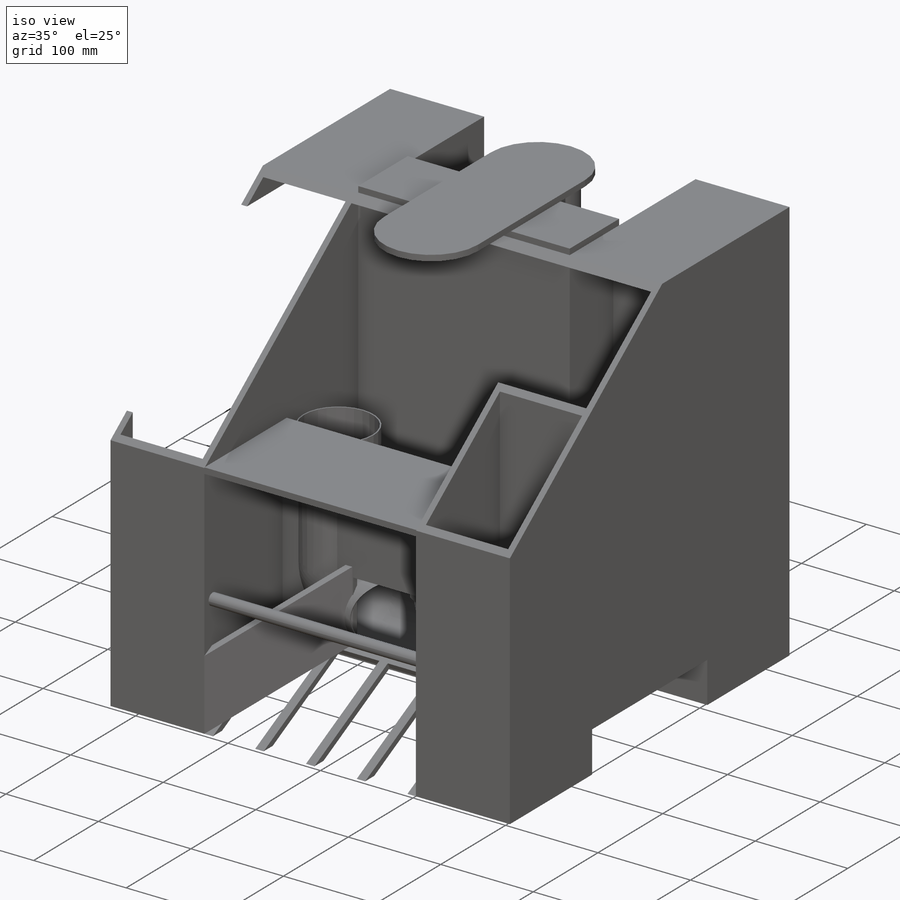
[diagram: iso view]
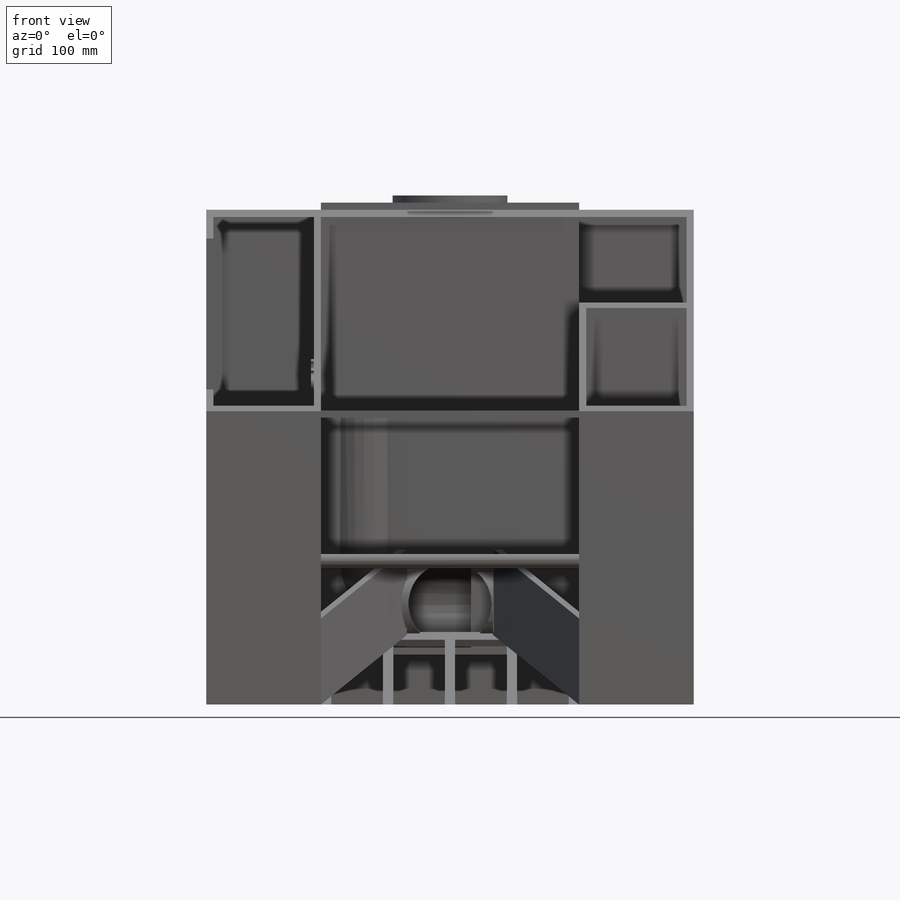
[diagram: front view]
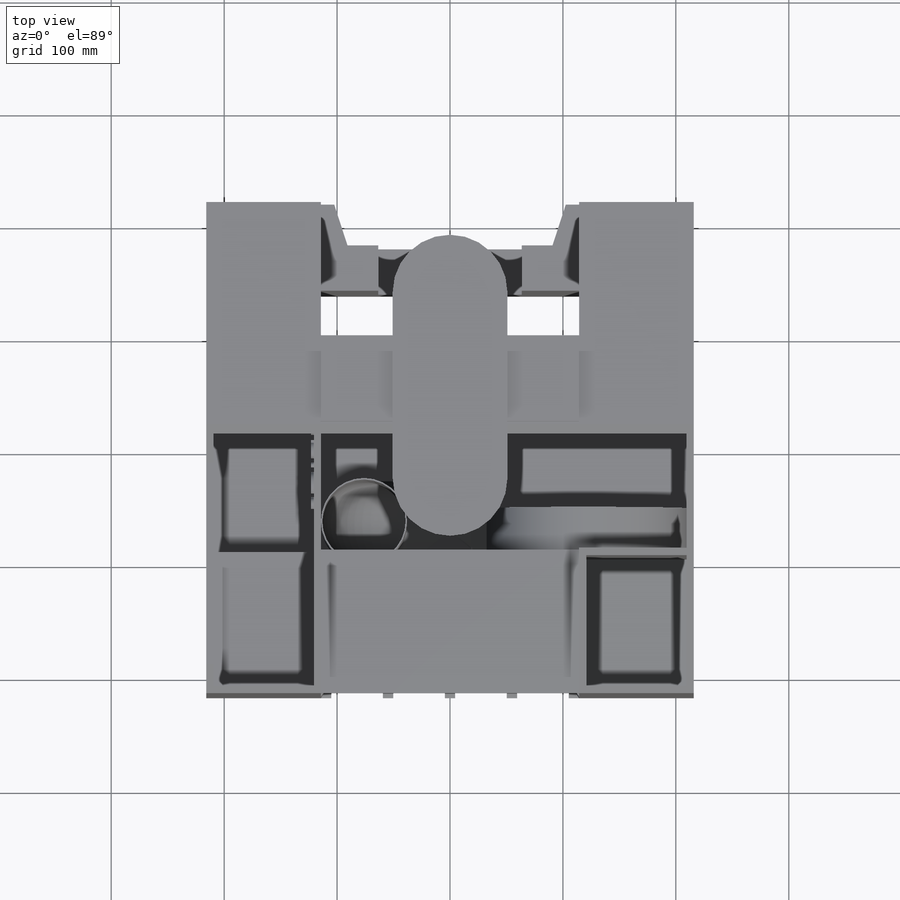
[diagram: top view]
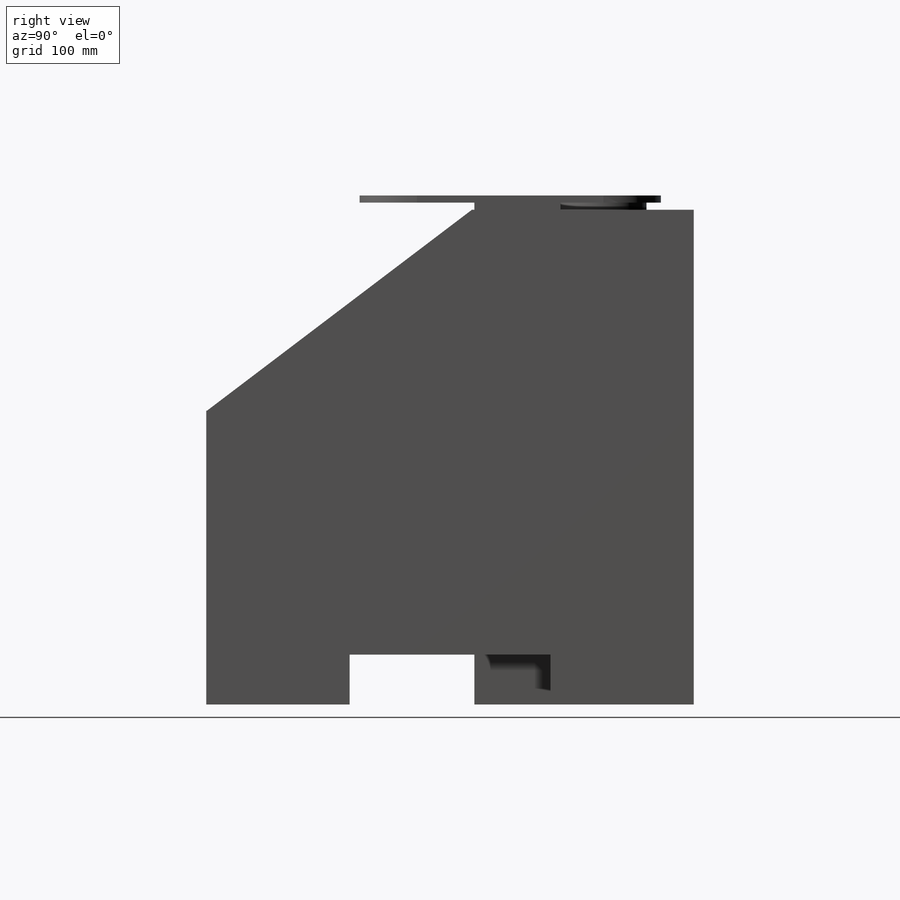
[diagram: right view]
SOLIDWORKS PART (.sldprt)
format: sldprt  version: not decoded by parser v0  size: 983,552 bytes
history: native  units: mm
features: sketch x24, extrude x17, cut_extrude x5, move_body x2, plane x2, material x1, sweep x1, mirror x1 (+13 scaffold rows collapsed)
feature tree (66):
  scaffold x13  (default folders/planes/origin — collapsed)
  material  "Material <not specified>"
  sketch  "Sketch1"  dims[D1=431.8mm D2=431.8mm D3=127.0mm D4=101.6mm]
  extrude  "Boss-Extrude1"  Depth=127mm
  sketch  "Sketch3"  dims[D1=0.0mm]
  extrude  "Boss-Extrude2"  Depth=38.1mm
  move_body  "Body-Move/Copy1"
  move_body  "Body-Move/Copy2"
  sketch  "3DSketch1"  dims[D5=38.1mm D1=63.5mm D2=38.1mm D3=88.9mm D4=76.2mm D6=127.0mm]
  plane  "Plane1"
  sketch  "Sketch4"  dims[D1=73.66mm D2=76.2mm]
  sweep  "Sweep1"
  plane  "Plane2"
  sketch  "Sketch5"  dims[D1=73.66mm]
  cut_extrude  "Cut-Extrude1"  [1 undecoded]
  sketch  "Sketch7"  dims[D1=6.35mm D2=57.15mm]
  extrude  "Boss-Extrude3"  Depth=228.6mm
  sketch  "Sketch8"  dims[D1=45.72mm D2=127.0mm]
  cut_extrude  "Cut-Extrude2"  [1 undecoded]
  sketch  "Sketch9"  dims[D1=254.0mm D2=76.2mm]
  extrude  "Boss-Extrude4"  Depth=6.35mm
  sketch  "Sketch10"  dims[D2=12.7mm D1=12.7mm D3=127.0mm]
  extrude  "Boss-Extrude5"  Depth=228.6mm
  sketch  "Sketch13"  dims[D1=444.5mm D2=76.2mm]
  extrude  "Boss-Extrude6"  Depth=228.6mm
  sketch  "Sketch14"  dims[D2=6.35mm D3=6.35mm D4=6.35mm D5=6.35mm D6=6.35mm D7=6.35mm D8=6.35mm D1=6.35mm]
  extrude  "Boss-Extrude8"  Depth=304.8mm
  sketch  "Sketch15"  dims[D1=6.35mm]
  extrude  "Boss-Extrude9"  Depth=228.6mm
  sketch  "Sketch16"
  extrude  "Boss-Extrude10"  Depth=6.35mm
  sketch  "Sketch17"
  extrude  "Boss-Extrude11"  Depth=6.35mm
  sketch  "Sketch18"
  extrude  "Boss-Extrude12"  Depth=6.35mm
  sketch  "Sketch19"
  extrude  "Boss-Extrude14"  Depth=6.35mm
  sketch  "Sketch20"  dims[D1=25.4mm D2=25.4mm D3=101.6mm D4=25.4mm]
  cut_extrude  "Cut-Extrude3"  Depth=12.7mm
  sketch  "Sketch21"  dims[D1=279.4mm D2=127.0mm]
  extrude  "Boss-Extrude15"  Depth=2.54mm
  sketch  "Sketch22"  dims[D1=6.35mm]
  extrude  "Boss-Extrude17"  Depth=76.2mm
  mirror  "Mirror2"
  sketch  "Sketch23"  dims[D1=50.8mm D2=304.8mm D3=101.6mm]
  extrude  "Boss-Extrude18"  Depth=76.2mm
  sketch  "Sketch24"  dims[D1=50.8mm D2=38.1mm D3=50.8mm]
  extrude  "Boss-Extrude19"  Depth=6.35mm
  sketch  "Sketch25"  dims[D1=76.2mm]
  extrude  "Boss-Extrude20"  Depth=304.8mm
  sketch  "Sketch29"
  cut_extrude  "Cut-Extrude8"  [1 undecoded]
  sketch  "Sketch30"  dims[D1=279.4mm]
  cut_extrude  "Cut-Extrude9"  [1 undecoded]
decode coverage: 37 of 50 modeling features carry decoded parameters
note: 4 parameter values undecoded
summary: no parameter record found for 4 features
note: suppression state not decoded; provenance and decode notes live in map.json
